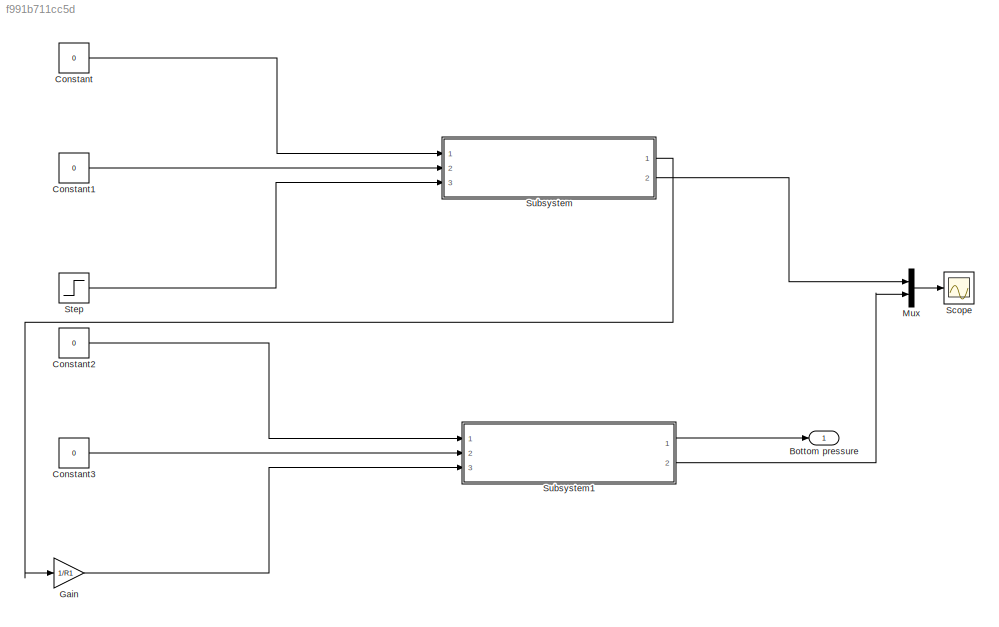
MODEL slx_f991b711cc5d
KIND model
CONFIG AbsTol = auto
CONFIG EnableMultiTasking = off
CONFIG FixedStep = auto
CONFIG MaxStep = auto
CONFIG MinStep = auto
CONFIG RelTol = 1e-3
CONFIG SampleTimeConstraint = Unconstrained
CONFIG SolverName = VariableStepAuto
CONFIG StartTime = 0.0
CONFIG StopTime = 20.0
BLOCK [Outport] Bottom pressure
BLOCK [Constant] Constant
  Value = 0
BLOCK [Constant] Constant1
  Value = 0
BLOCK [Constant] Constant2
  Value = 0
BLOCK [Constant] Constant3
  Value = 0
BLOCK [Gain] Gain
  Gain = 1/R1
BLOCK [Mux] Mux
  DisplayOption = bar
  Inputs = 2
  Ports = [2, 1]
BLOCK [Scope] Scope
  Floating = off
  NumInputPorts = 1
  Ports = [1]
  ScopeSpecificationString = Simulink.scopes.TimeScopeBlockCfg('CurrentConfiguration', extmgr.ConfigurationSet(extmgr.Configuration('Core','General UI',true),extmgr.Configuration('Core','Source UI',true),extmgr.Configuration('Sources','WiredSimulink',true),extmgr.Configuration('Visuals','Time Domain',true,'SerializedDisplays',{struct('MinYLimReal','0.61136','MaxYLimReal','13.86273','YLabelReal','','MinYLimMag','0.61136','MaxY...<+1348ch>
BLOCK [Step] Step
  After = 0.5
  SampleTime = 0
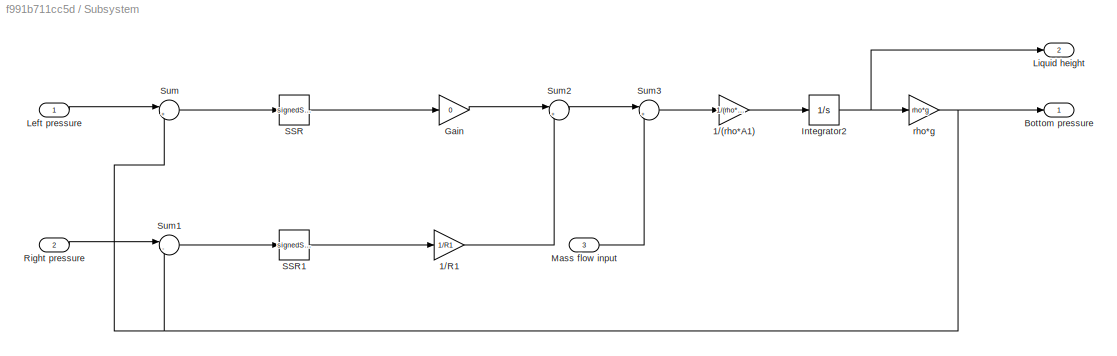
BLOCK [SubSystem] Subsystem
  Ports = [3, 2]
  RequestExecContextInheritance = off
BLOCK [Gain] Subsystem/1//(rho*A1)
  Gain = 1/(rho*A1)
BLOCK [Gain] Subsystem/1//R1
  Gain = 1/R1
BLOCK [Outport] Subsystem/Bottom pressure
BLOCK [Gain] Subsystem/Gain
  Gain = 0
BLOCK [Integrator] Subsystem/Integrator2
  InitialCondition = h1
  Ports = [1, 1]
BLOCK [Inport] Subsystem/Left pressure
BLOCK [Outport] Subsystem/Liquid height
  Port = 2
BLOCK [Inport] Subsystem/Mass flow input
  Port = 3
BLOCK [Inport] Subsystem/Right pressure
  Port = 2
BLOCK [Sqrt] Subsystem/SSR
  Operator = signedSqrt
BLOCK [Sqrt] Subsystem/SSR1
  Operator = signedSqrt
BLOCK [Sum] Subsystem/Sum
  Inputs = |+-
  Ports = [2, 1]
BLOCK [Sum] Subsystem/Sum1
  Inputs = |-+
  Ports = [2, 1]
BLOCK [Sum] Subsystem/Sum2
  Inputs = |+-
  Ports = [2, 1]
BLOCK [Sum] Subsystem/Sum3
  Inputs = |++
  Ports = [2, 1]
BLOCK [Gain] Subsystem/rho*g
  Gain = rho*g
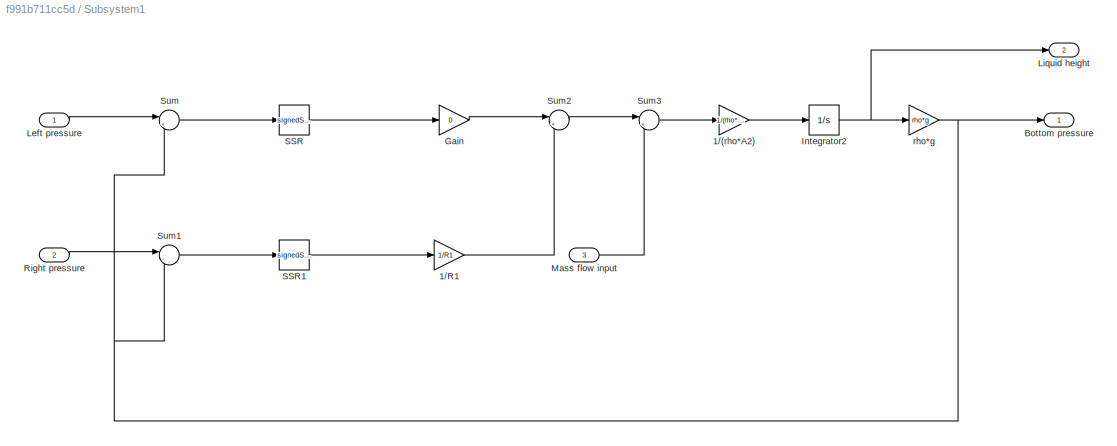
BLOCK [SubSystem] Subsystem1
  Ports = [3, 2]
  RequestExecContextInheritance = off
BLOCK [Gain] Subsystem1/1//(rho*A2)
  Gain = 1/(rho*A2)
BLOCK [Gain] Subsystem1/1//R1
  Gain = 1/R1
BLOCK [Outport] Subsystem1/Bottom pressure
BLOCK [Gain] Subsystem1/Gain
  Gain = 0
BLOCK [Integrator] Subsystem1/Integrator2
  InitialCondition = h2
  Ports = [1, 1]
BLOCK [Inport] Subsystem1/Left pressure
BLOCK [Outport] Subsystem1/Liquid height
  Port = 2
BLOCK [Inport] Subsystem1/Mass flow input
  Port = 3
BLOCK [Inport] Subsystem1/Right pressure
  Port = 2
BLOCK [Sqrt] Subsystem1/SSR
  Operator = signedSqrt
BLOCK [Sqrt] Subsystem1/SSR1
  Operator = signedSqrt
BLOCK [Sum] Subsystem1/Sum
  Inputs = |+-
  Ports = [2, 1]
BLOCK [Sum] Subsystem1/Sum1
  Inputs = |-+
  Ports = [2, 1]
BLOCK [Sum] Subsystem1/Sum2
  Inputs = |+-
  Ports = [2, 1]
BLOCK [Sum] Subsystem1/Sum3
  Inputs = |++
  Ports = [2, 1]
BLOCK [Gain] Subsystem1/rho*g
  Gain = rho*g
LINE Constant1:1 -> Subsystem:2
LINE Constant2:1 -> Subsystem1:1
LINE Constant3:1 -> Subsystem1:2
LINE Constant:1 -> Subsystem:1
LINE Gain:1 -> Subsystem1:3
LINE Mux:1 -> Scope:1
LINE Step:1 -> Subsystem:3
LINE Subsystem/1//(rho*A1):1 -> Subsystem/Integrator2:1
LINE Subsystem/1//R1:1 -> Subsystem/Sum2:2
LINE Subsystem/Gain:1 -> Subsystem/Sum2:1
NET Subsystem/Integrator2:1 -> Subsystem/Liquid height:1, Subsystem/rho*g:1
LINE Subsystem/Left pressure:1 -> Subsystem/Sum:1
LINE Subsystem/Mass flow input:1 -> Subsystem/Sum3:2
LINE Subsystem/Right pressure:1 -> Subsystem/Sum1:1
LINE Subsystem/SSR1:1 -> Subsystem/1//R1:1
LINE Subsystem/SSR:1 -> Subsystem/Gain:1
LINE Subsystem/Sum1:1 -> Subsystem/SSR1:1
LINE Subsystem/Sum2:1 -> Subsystem/Sum3:1
LINE Subsystem/Sum3:1 -> Subsystem/1//(rho*A1):1
LINE Subsystem/Sum:1 -> Subsystem/SSR:1
NET Subsystem/rho*g:1 -> Subsystem/Bottom pressure:1, Subsystem/Sum1:2, Subsystem/Sum:2
LINE Subsystem1/1//(rho*A2):1 -> Subsystem1/Integrator2:1
LINE Subsystem1/1//R1:1 -> Subsystem1/Sum2:2
LINE Subsystem1/Gain:1 -> Subsystem1/Sum2:1
NET Subsystem1/Integrator2:1 -> Subsystem1/Liquid height:1, Subsystem1/rho*g:1
LINE Subsystem1/Left pressure:1 -> Subsystem1/Sum:1
LINE Subsystem1/Mass flow input:1 -> Subsystem1/Sum3:2
LINE Subsystem1/Right pressure:1 -> Subsystem1/Sum1:1
LINE Subsystem1/SSR1:1 -> Subsystem1/1//R1:1
LINE Subsystem1/SSR:1 -> Subsystem1/Gain:1
LINE Subsystem1/Sum1:1 -> Subsystem1/SSR1:1
LINE Subsystem1/Sum2:1 -> Subsystem1/Sum3:1
LINE Subsystem1/Sum3:1 -> Subsystem1/1//(rho*A2):1
LINE Subsystem1/Sum:1 -> Subsystem1/SSR:1
NET Subsystem1/rho*g:1 -> Subsystem1/Bottom pressure:1, Subsystem1/Sum1:2, Subsystem1/Sum:2
LINE Subsystem1:1 -> Bottom pressure:1
LINE Subsystem1:2 -> Mux:2
LINE Subsystem:1 -> Gain:1
LINE Subsystem:2 -> Mux:1
note: NET lines group one-source signal fan-out (src -> all destinations, sorted); 1:1 wires keep LINE
